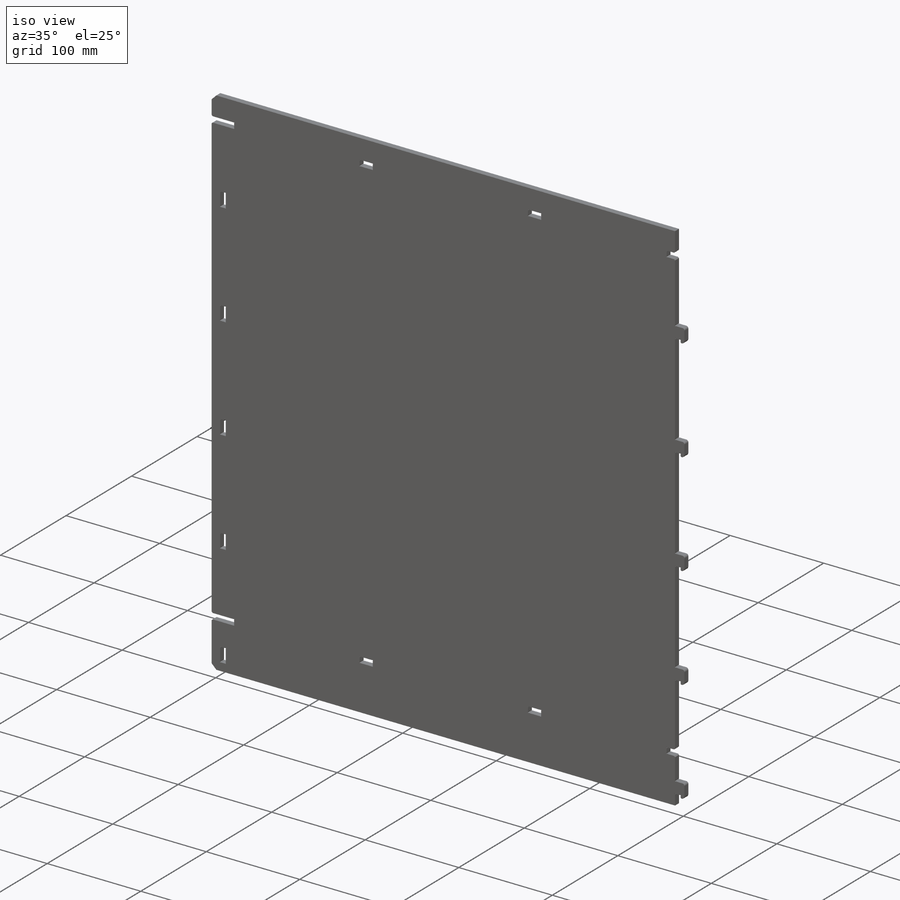
[diagram: iso view]
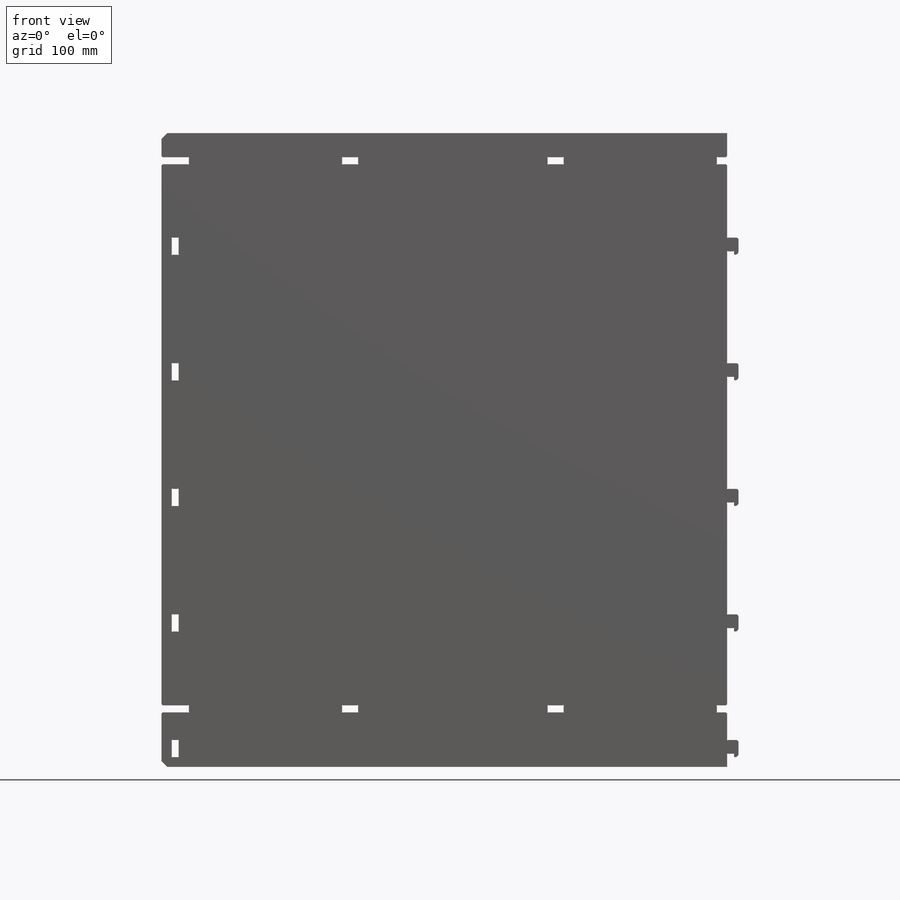
[diagram: front view]
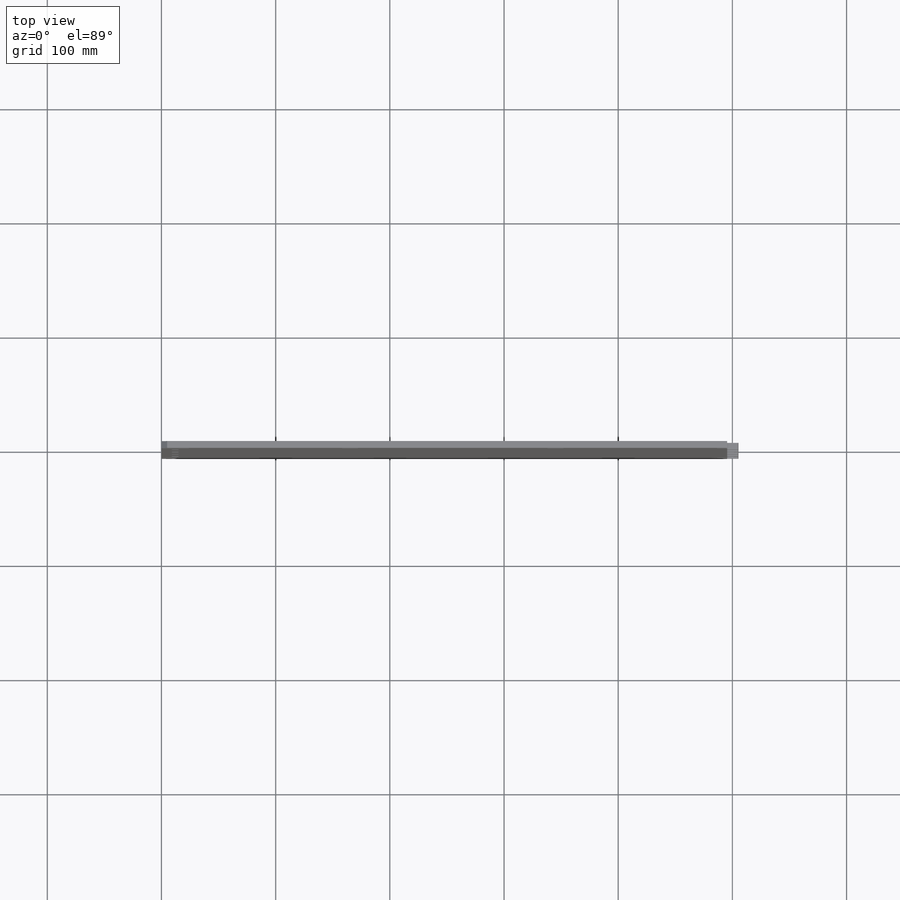
[diagram: top view]
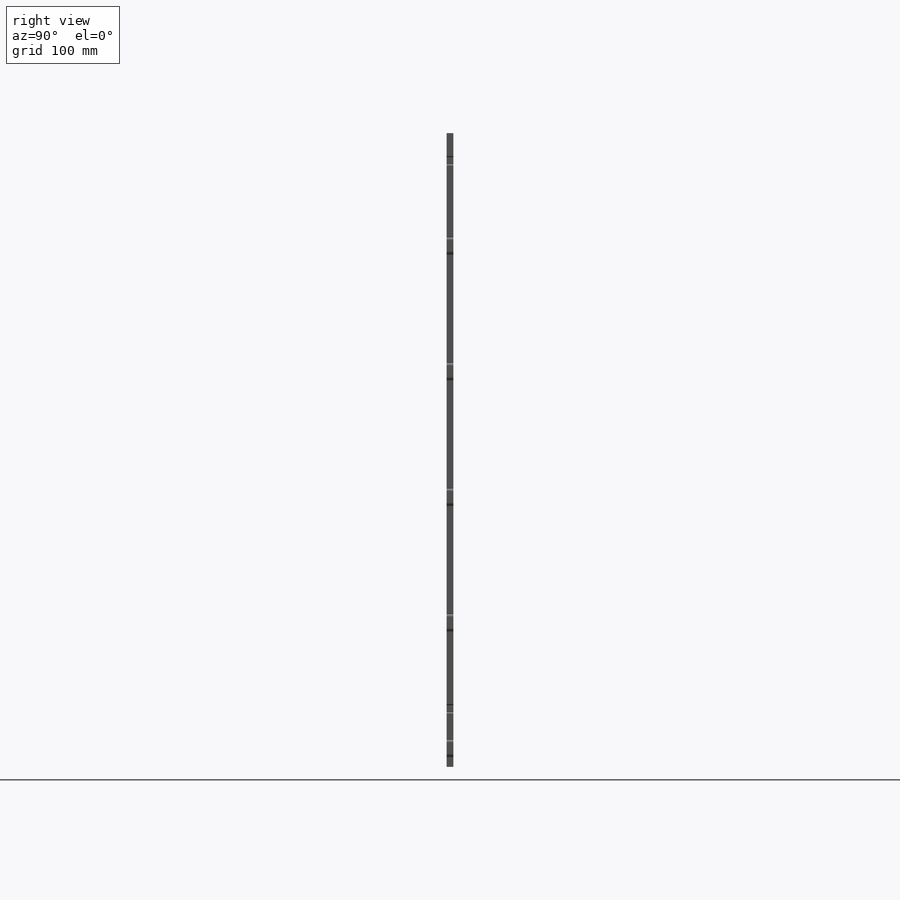
[diagram: right view]
SOLIDWORKS PART (.sldprt)
format: sldprt  version: not decoded by parser v0  size: 617,984 bytes
history: native  units: mm
features: sketch x8, cut_extrude x6, pattern_linear x3, extrude x2, chamfer x2, material x1 (+16 scaffold rows collapsed)
feature tree (38):
  scaffold x16  (default folders/planes/origin — collapsed)
  material  "Acrylic (Medium-high impact)"
  sketch  "Sketch1"  dims[D1=495.4mm D2=555.0mm]
  extrude  "Boss-Extrude1"  Depth=6mm
  sketch  "Sketch3"  dims[c1.D1=1.0mm c1.D3=1.0mm c1.D4=2.0mm c1.D5=1.0mm c2.D1=~0.968153mm c2.D6=2.0mm c2.D5=1.0mm c2.D8=1.0mm c2.D3=2.0mm c2.D2=15.0mm c3.D1=2.0mm c3.D2=4.0mm c3.D3=6.0mm c3.D6=15.0mm c4.D1=~15.000063mm c4.D6=3.0mm c4.D7=3.0mm c4.D8=6.0mm c5.D1=6.0mm c5.D2=12.0mm c5.D3=10.0mm c5.D4=23.5mm]
  extrude  "Boss-Extrude2"  [1 undecoded]
  sketch  "Sketch2"  dims[c1.D1=0.9mm c1.D2=2.0mm c1.D3=15.0mm c1.D4=15.0mm c1.D5=17.0mm c1.D6=16.0mm c2.D2=6.0mm c2.D7=70.0mm c2.D1=15.0mm]
  cut_extrude  "Cut-Extrude1"  [1 undecoded]
  sketch  "Sketch6"  dims[D1=1.0mm]
  cut_extrude  "Cut-Extrude4"  [1 undecoded]
  pattern_linear  "LPattern1"  Count1=5 Count2=1 Spacing1=110mm Spacing2=10mm
  sketch  "Sketch5"  dims[D1=6.2mm D2=24.0mm D3=9.0mm D4=47.7mm]
  cut_extrude  "Cut-Extrude3"  [1 undecoded]
  sketch  "Sketch7"  dims[D1=1.0mm]
  cut_extrude  "Cut-Extrude5"  [1 undecoded]
  sketch  "Sketch8"  dims[D1=14.0mm D2=180.0mm]
  cut_extrude  "Cut-Extrude6"  [1 undecoded]
  sketch  "Sketch9"  dims[D1=1.0mm]
  cut_extrude  "Cut-Extrude7"  [1 undecoded]
  pattern_linear  "LPattern4"  Count1=2 Count2=1 Spacing1=180mm Spacing2=10mm
  chamfer  "Chamfer2"  Distance=1mm Angle=45deg
  pattern_linear  "LPattern3"  Count1=2 Count2=1 Spacing1=480mm Spacing2=10mm
  chamfer  "Chamfer1"  Distance=5mm Angle=45deg
decode coverage: 14 of 21 modeling features carry decoded parameters
note: ~ marks probable driven/reference dimensions
note: 7 parameter values undecoded
summary: no parameter record found for 7 features
note: suppression state not decoded; provenance and decode notes live in map.json
